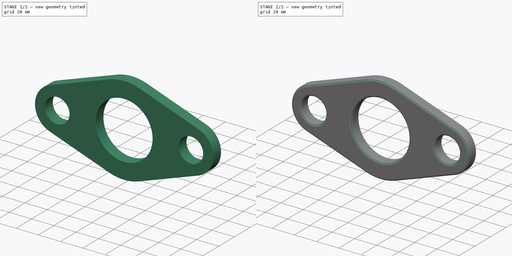
[diagram: build sequence overview — one tinted view per stage of 2, left to right]
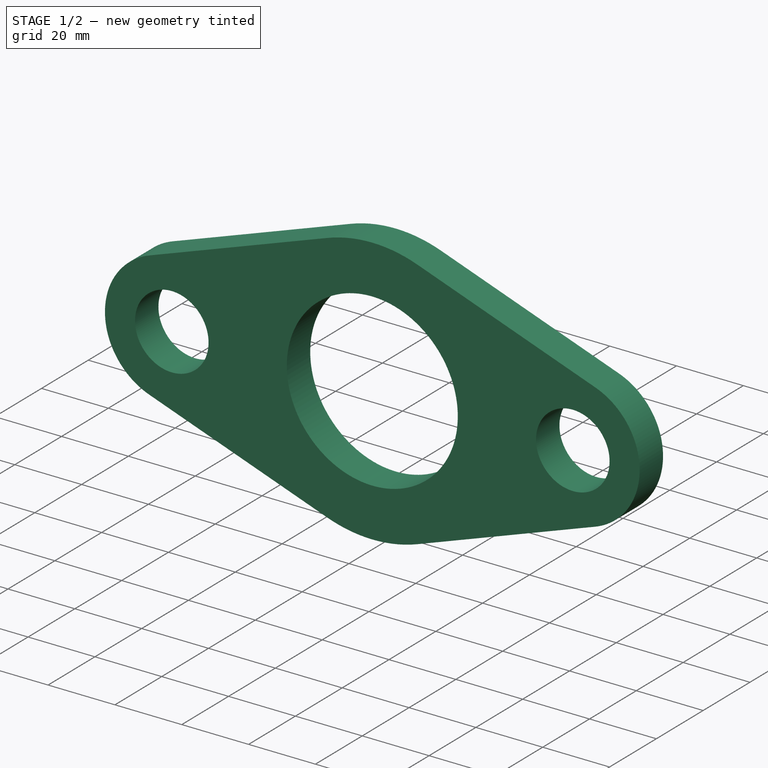
[diagram: stage 1 of 2 — iso view after this stage's code; geometry added in this stage tinted green]
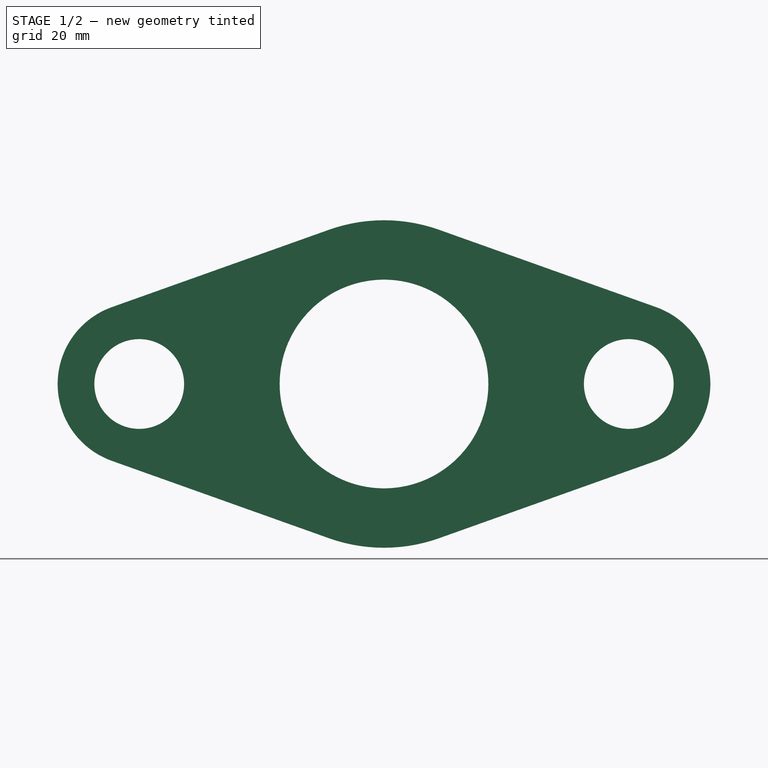
[diagram: stage 1 of 2 — front view after this stage's code; geometry added in this stage tinted green]
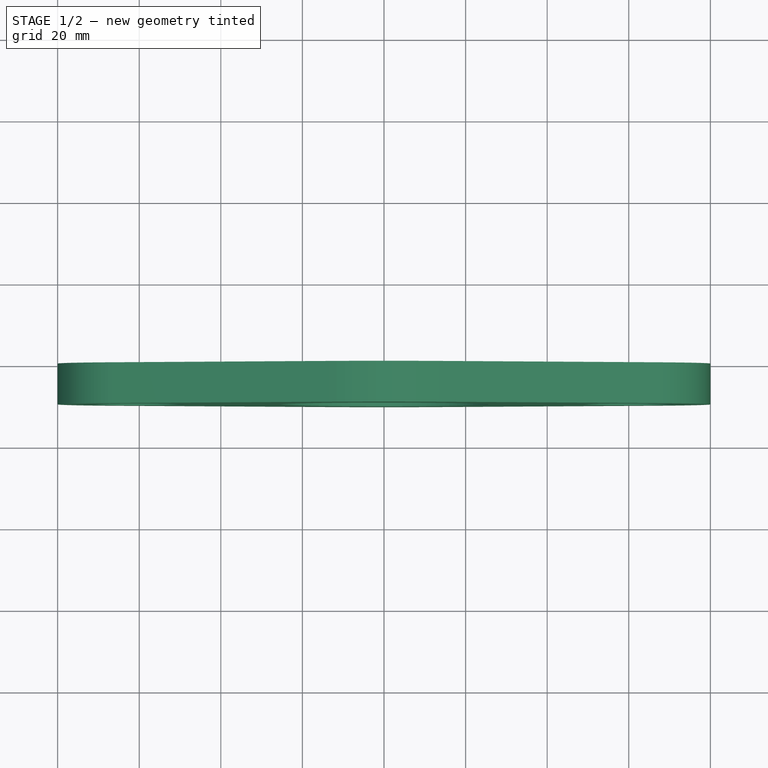
[diagram: stage 1 of 2 — top view after this stage's code; geometry added in this stage tinted green]
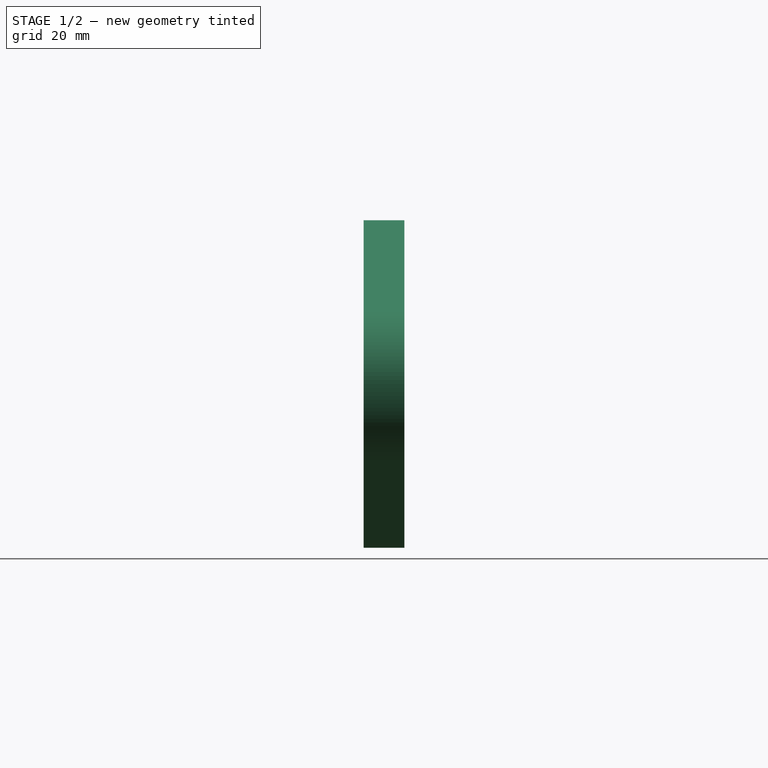
[diagram: stage 1 of 2 — right view after this stage's code; geometry added in this stage tinted green]
FCSTD DOCUMENT  (FreeCAD 0.21R33771 (Git))
Label: flanec
License: All rights reserved
LicenseURL: http://en.wikipedia.org/wiki/All_rights_reserved
objects: Sketcher::SketchObject×1, PartDesign::Pad×1, PartDesign::Fillet×1, PartDesign::Body×1
note: 6 computed .brp shape members not serialized (recipe doc carries the construction recipe); baked Part::Feature solids carry a one-line shape summary decoded from their .brp

FEATURE [Sketcher::SketchObject] Sketch
  FullyConstrained = false
  MapMode = 5
  Placement = pos=(0,0,0) rot=(1,0,0;1.5708rad)
  Support = -> [XZ_Plane]
  sketch-geometry (19):
    g0: Circle CenterX=0 CenterY=0 CenterZ=0 NormalX=0 NormalY=0 NormalZ=1 AngleXU=0 Radius=25.5777
    g1: Circle CenterX=-60 CenterY=0 CenterZ=0 NormalX=0 NormalY=0 NormalZ=1 AngleXU=0 Radius=11
    g2: Circle CenterX=60 CenterY=0 CenterZ=0 NormalX=0 NormalY=0 NormalZ=1 AngleXU=0 Radius=11
    g3: ArcOfCircle CenterX=-60 CenterY=0 CenterZ=0 NormalX=0 NormalY=0 NormalZ=1 AngleXU=0 Radius=20 StartAngle=1.91311 EndAngle=4.37008
    g4: ArcOfCircle CenterX=0 CenterY=0 CenterZ=0 NormalX=0 NormalY=0 NormalZ=1 AngleXU=0 Radius=40.14 StartAngle=4.37008 EndAngle=5.0547
    g5: LineSegment StartX=-13.4737 StartY=37.8111 StartZ=0 EndX=-66.7133 EndY=18.8396 EndZ=0
    g6: LineSegment StartX=-13.4737 StartY=37.8111 StartZ=0 EndX=0 EndY=0 EndZ=0
    g7: LineSegment StartX=-66.7133 StartY=18.8396 StartZ=0 EndX=-60 EndY=0 EndZ=0
    g8: LineSegment StartX=13.4737 StartY=37.8111 StartZ=0 EndX=66.7133 EndY=18.8396 EndZ=0
    g9: LineSegment StartX=13.4737 StartY=37.8111 StartZ=0 EndX=-1.8e-15 EndY=0 EndZ=0
    g10: LineSegment StartX=66.7133 StartY=18.8396 StartZ=0 EndX=60 EndY=0 EndZ=0
    g11: LineSegment StartX=-66.7133 StartY=-18.8396 StartZ=0 EndX=-13.4737 EndY=-37.8111 EndZ=0
    g12: LineSegment StartX=-60 StartY=0 StartZ=0 EndX=-66.7133 EndY=-18.8396 EndZ=0
    g13: LineSegment StartX=0 StartY=0 StartZ=0 EndX=-13.4737 EndY=-37.8111 EndZ=0
    g14: LineSegment StartX=13.4737 StartY=-37.8111 StartZ=0 EndX=66.7133 EndY=-18.8396 EndZ=0
    g15: LineSegment StartX=0 StartY=0 StartZ=0 EndX=13.4737 EndY=-37.8111 EndZ=0
    g16: LineSegment StartX=60 StartY=0 StartZ=0 EndX=66.7133 EndY=-18.8396 EndZ=0
    g17: ArcOfCircle CenterX=0 CenterY=0 CenterZ=0 NormalX=0 NormalY=0 NormalZ=1 AngleXU=0 Radius=40.14 StartAngle=1.22848 EndAngle=1.91311
    g18: ArcOfCircle CenterX=60 CenterY=0 CenterZ=0 NormalX=0 NormalY=0 NormalZ=1 AngleXU=0 Radius=20 StartAngle=5.0547 EndAngle=7.51167
  constraints (44):
    c: Coincident(g0,g-1)
    c: PointOnObject(g1,g-1)
    c: PointOnObject(g2,g-1)
    c: Radius(g1) = 11
    c: Equal(g2,g1)
    c: DistanceX(g1,g0) = 60
    c: DistanceX(g0,g2) = 60
    c: Coincident(g3,g1)
    c: Coincident(g4,g0)
    c: Radius(g3) = 20
    c: Radius(g4) = 40.14
    c: Coincident(g6,g5)
    c: Coincident(g6,g0)
    c: Perpendicular(g6,g5)
    c: Coincident(g7,g5)
    c: Coincident(g7,g1)
    c: Perpendicular(g5,g7)
    c: PointOnObject(g8,g4)
    c: Coincident(g9,g8)
    c: Coincident(g9,g0)
    c: Perpendicular(g8,g9)
    c: Coincident(g10,g8)
    c: Coincident(g10,g2)
    c: Perpendicular(g8,g10)
    c: Coincident(g12,g1)
    c: Coincident(g12,g11)
    c: Perpendicular(g12,g11)
    c: Coincident(g13,g0)
    c: Coincident(g13,g11)
    c: Perpendicular(g13,g11)
    c: Coincident(g15,g0)
    c: Coincident(g15,g14)
    c: Perpendicular(g15,g14)
    c: Coincident(g16,g2)
    c: Coincident(g16,g14)
    c: Perpendicular(g16,g14)
    c: Coincident(g3,g5)
    c: Coincident(g3,g11)
    c: Coincident(g4,g11)
    c: Coincident(g17,g5)
    c: Coincident(g4,g14)
    c: Coincident(g18,g8) = 1.5708
    c: PointOnObject(g17,g8)
    c: Coincident(g18,g14)
FEATURE [PartDesign::Pad] Pad
  Direction = (0,-1,2e-16)
  Length = 10
  Length2 = 10
  Placement = pos=(0,0,0) rot=(1,0,0;1.5708rad)
  Profile = -> Sketch
  ReferenceAxis = -> Sketch [N_Axis]
  Refine = true
  Type = 0
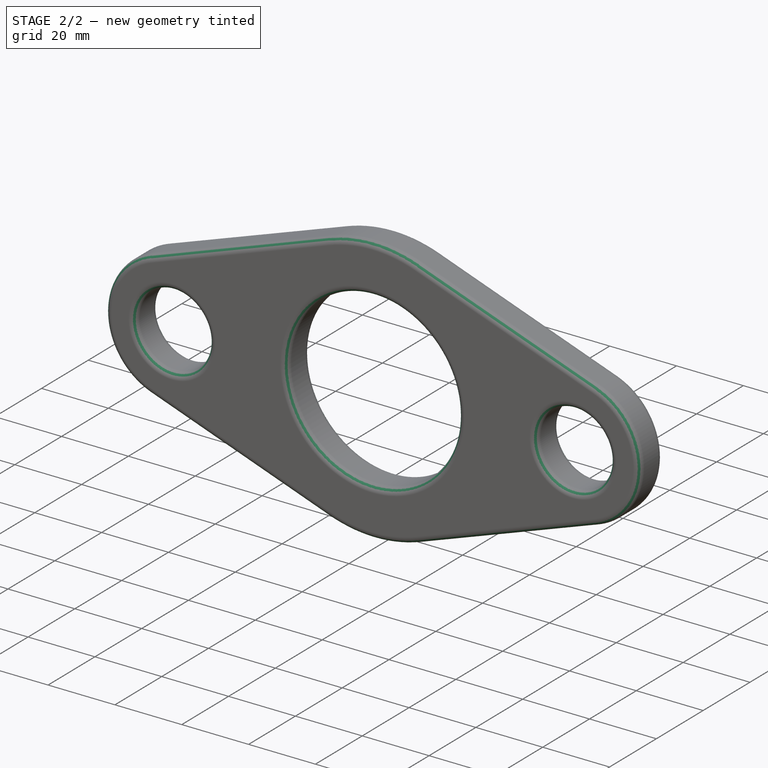
[diagram: stage 2 of 2 — iso view after this stage's code; geometry added in this stage tinted green]
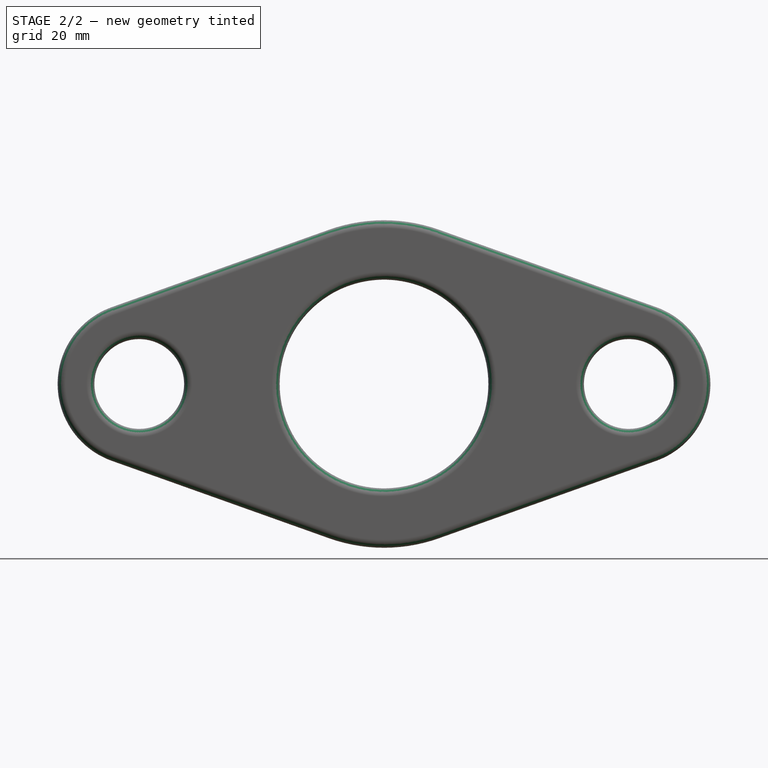
[diagram: stage 2 of 2 — front view after this stage's code; geometry added in this stage tinted green]
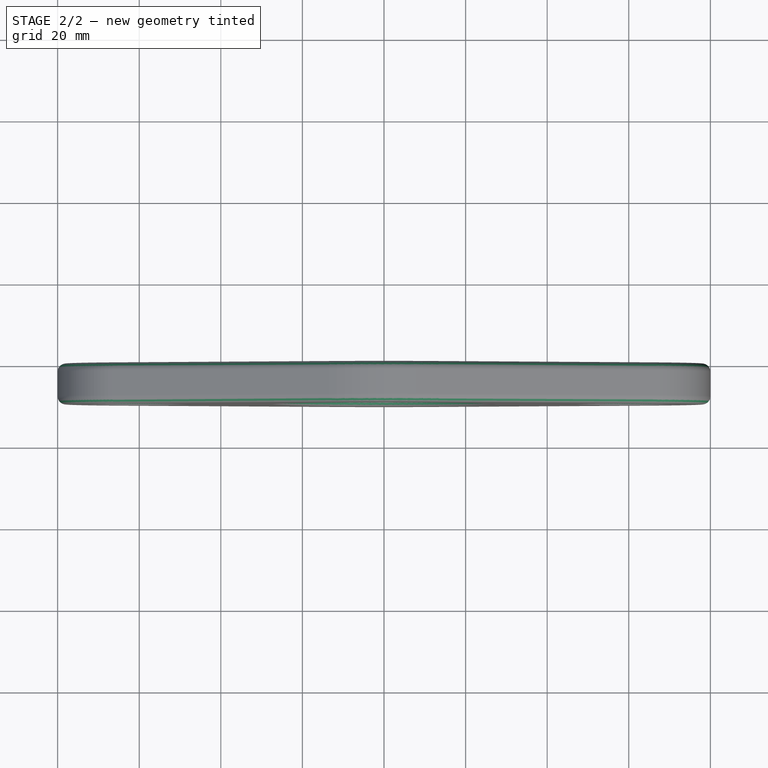
[diagram: stage 2 of 2 — top view after this stage's code; geometry added in this stage tinted green]
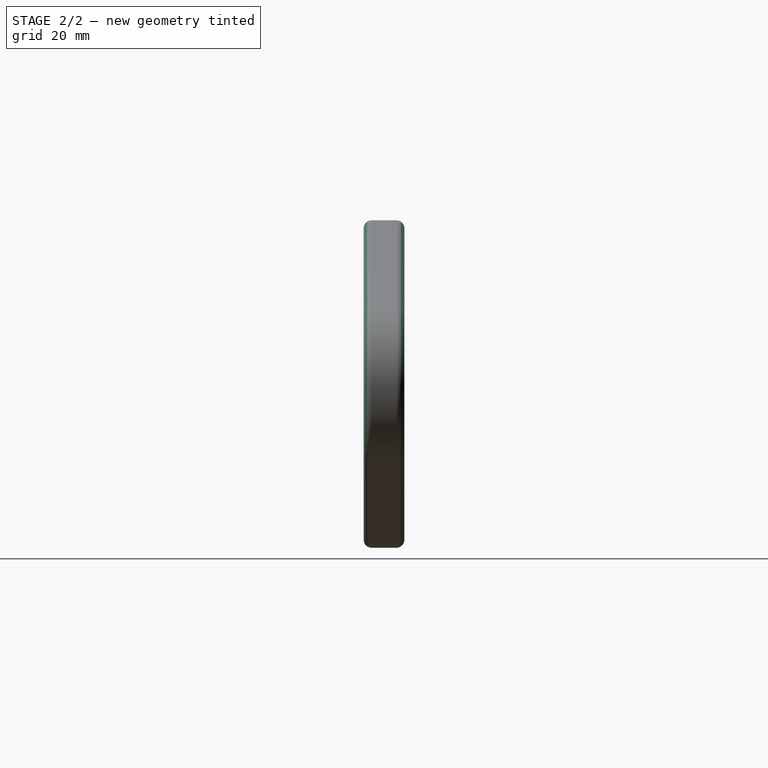
[diagram: stage 2 of 2 — right view after this stage's code; geometry added in this stage tinted green]
FEATURE [PartDesign::Fillet] Fillet
  Base = -> Pad [Edge1,Edge2,Edge3,Edge4,Edge5,Edge6,Edge7,Edge8,Edge9,Edge10,Edge11,Edge12,Edge13,Edge14,Edge15,Edge16,Edge17,Edge18,Edge19,Edge20,Edge21,Edge22,Edge23,Edge24,Edge25,Edge26,Edge27,Edge28,Edge29,Edge30,Edge31,Edge32,Edge33]
  BaseFeature = -> Pad
  Placement = pos=(0,0,0) rot=(1,0,0;1.5708rad)
  Radius = 2
  Refine = true
  SupportTransform = false
  UseAllEdges = true
FEATURE [PartDesign::Body] Body
  Group = -> [Sketch,Pad,Fillet]
  Origin = -> Origin
  Tip = -> Fillet
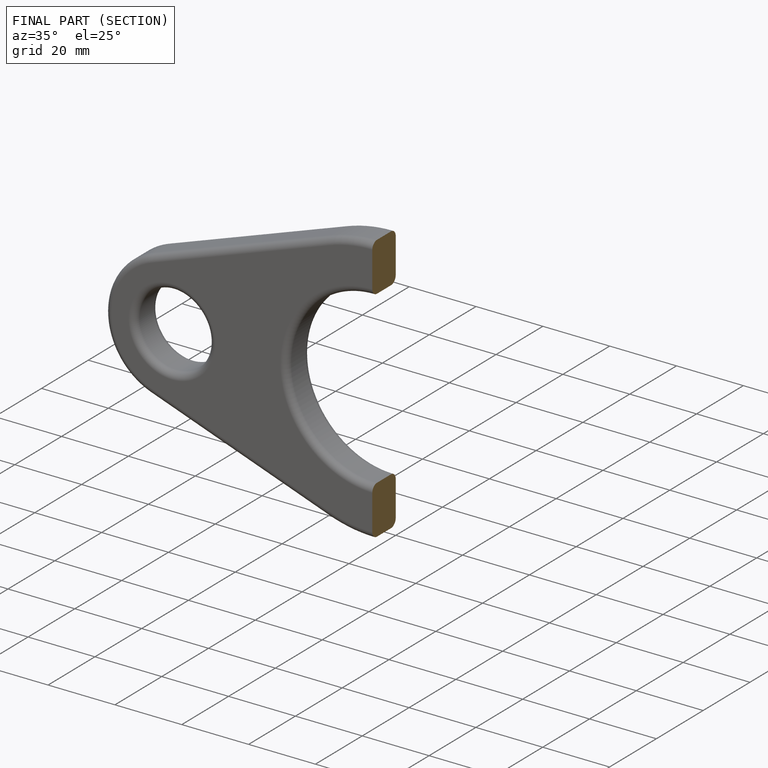
[diagram: finished part — half-section view (interior)]
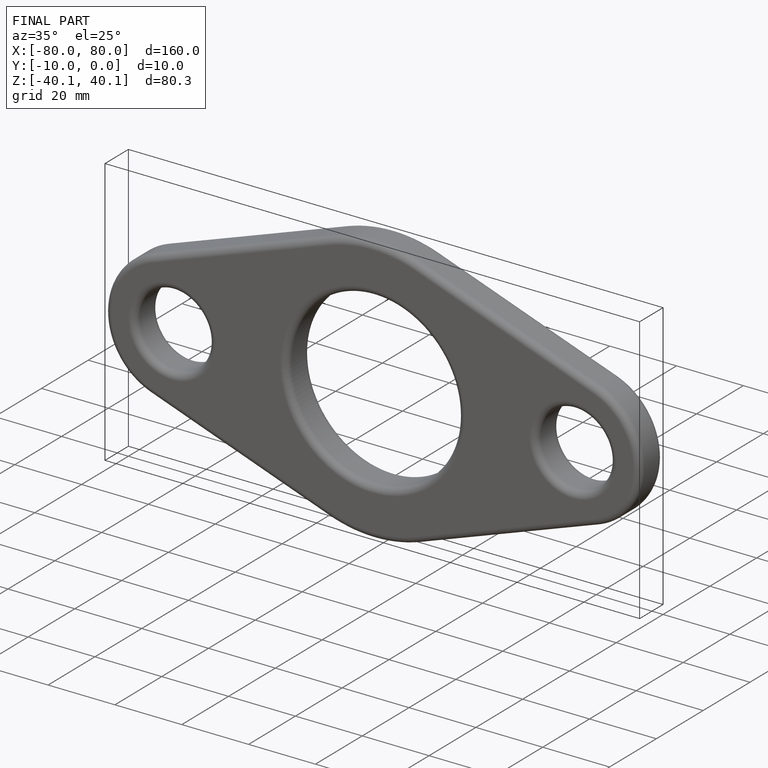
[diagram: finished part — iso view with bounding-box wireframe]
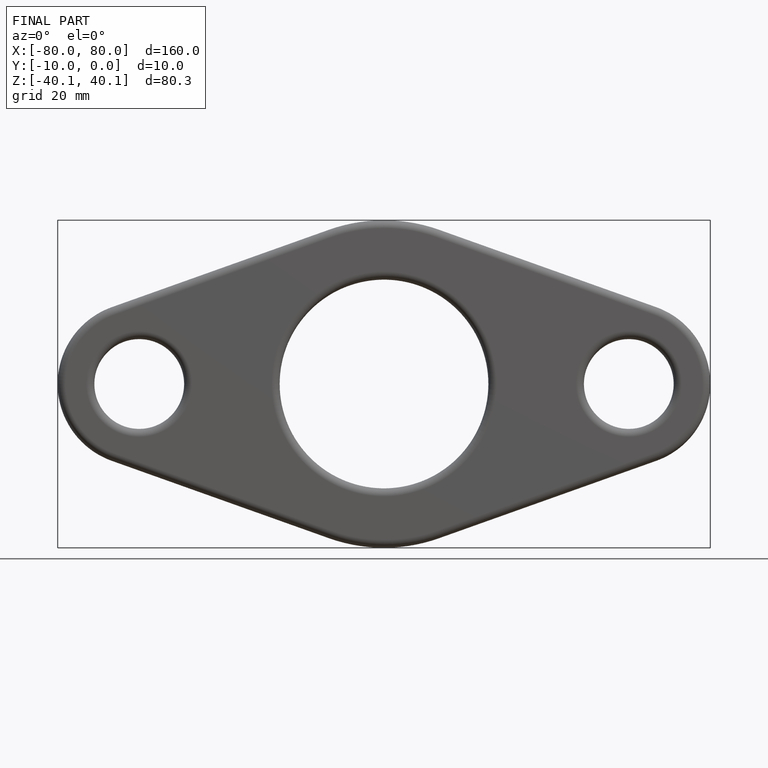
[diagram: finished part — front view with bounding-box wireframe]
